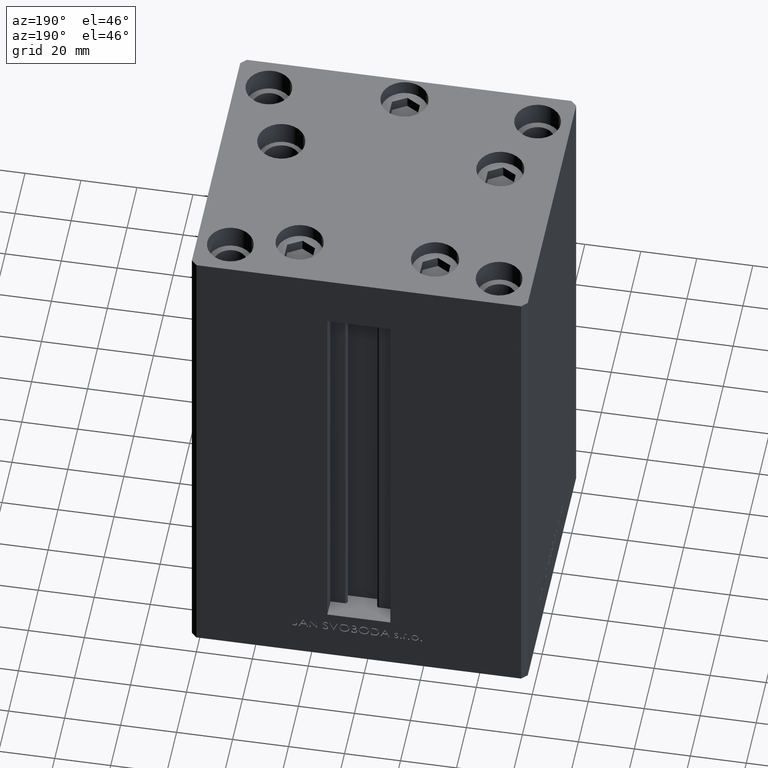
[diagram: clean part render]
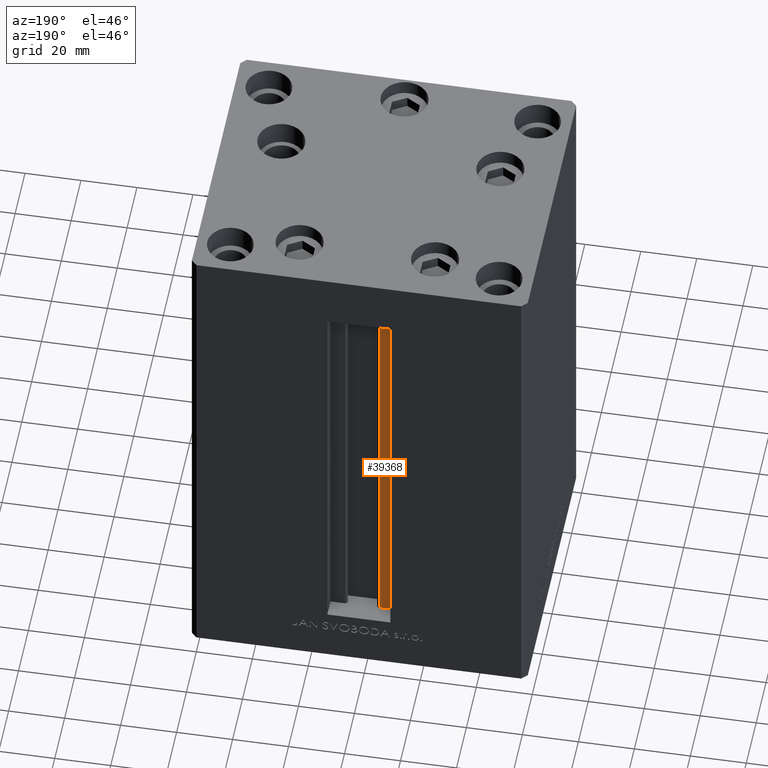
[diagram: same view with one face highlighted and labeled with its STEP entity id]
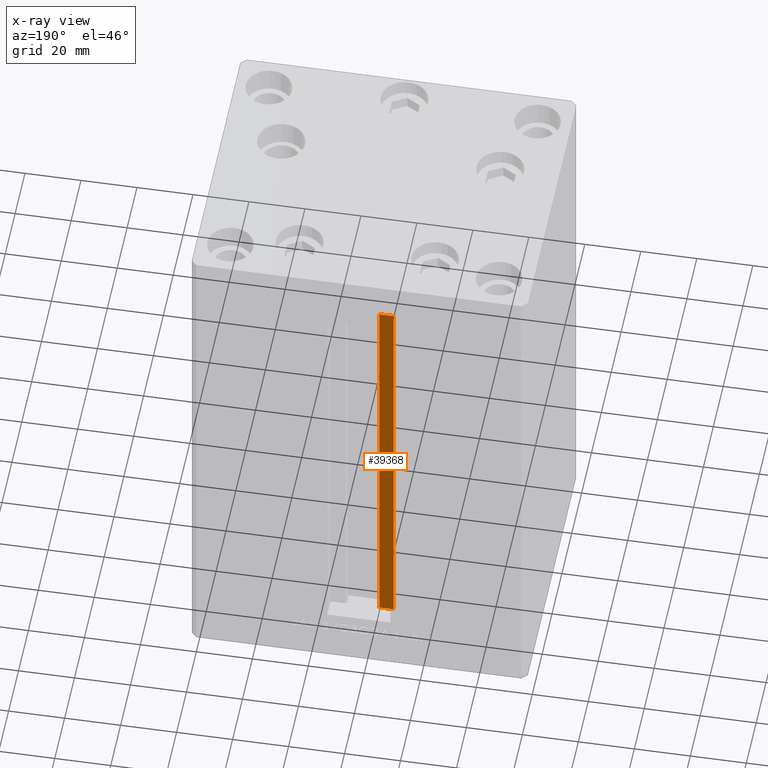
[diagram: x-ray of the same camera — body ghosted, the highlighted face saturated]
A machine part, auxiliary view. The second image highlights one B-rep face of the part: STEP entity #39368.
The next image is the same camera in x-ray: the body ghosted, the highlighted face saturated — about 0% of this face is hidden behind the body in this view.
In plain terms, the highlighted planar face has unit normal (0, -1, 0).
Its self-contained STEP definition (entity closure, byte-faithful):
#770 = VERTEX_POINT ( 'NONE', #5884 ) ;
#855 = VECTOR ( 'NONE', #26002, 1000.000000000000000 ) ;
#2185 = EDGE_CURVE ( 'NONE', #13941, #12533, #5060, .T. ) ;
#5060 = LINE ( 'NONE', #40102, #8283 ) ;
#5334 = VECTOR ( 'NONE', #23003, 1000.000000000000000 ) ;
#5884 = CARTESIAN_POINT ( 'NONE',  ( -6.183333333334001480, 44.50000000000000000, 148.5000000000000000 ) ) ;
#7271 = CARTESIAN_POINT ( 'NONE',  ( -11.25000000000000178, 44.50000000000000000, 148.5000000000000000 ) ) ;
#8283 = VECTOR ( 'NONE', #17485, 1000.000000000000000 ) ;
#10860 = CARTESIAN_POINT ( 'NONE',  ( -6.183333333334001480, 44.50000000000000000, 0.000000000000000000 ) ) ;
#11337 = CARTESIAN_POINT ( 'NONE',  ( -6.183333333334001480, 44.50000000000000000, 0.000000000000000000 ) ) ;
#12056 = ORIENTED_EDGE ( 'NONE', *, *, #39728, .F. ) ;
#12533 = VERTEX_POINT ( 'NONE', #7271 ) ;
#13941 = VERTEX_POINT ( 'NONE', #16707 ) ;
#14579 = LINE ( 'NONE', #10860, #25008 ) ;
#16707 = CARTESIAN_POINT ( 'NONE',  ( -11.25000000000000178, 44.50000000000000000, 0.000000000000000000 ) ) ;
#17485 = DIRECTION ( 'NONE',  ( -0.000000000000000000, -0.000000000000000000, 1.000000000000000000 ) ) ;
#18610 = CARTESIAN_POINT ( 'NONE',  ( -6.183333333334001480, 44.50000000000000000, 0.000000000000000000 ) ) ;
#20353 = AXIS2_PLACEMENT_3D ( 'NONE', #18610, #44710, #33765 ) ;
#21424 = EDGE_CURVE ( 'NONE', #770, #12533, #48593, .T. ) ;
#22340 = FACE_OUTER_BOUND ( 'NONE', #32033, .T. ) ;
#23003 = DIRECTION ( 'NONE',  ( -0.000000000000000000, -0.000000000000000000, 1.000000000000000000 ) ) ;
#23081 = CARTESIAN_POINT ( 'NONE',  ( -6.183333333334001480, 44.50000000000000000, 0.000000000000000000 ) ) ;
#23734 = LINE ( 'NONE', #11337, #5334 ) ;
#25008 = VECTOR ( 'NONE', #26008, 1000.000000000000000 ) ;
#26002 = DIRECTION ( 'NONE',  ( -1.000000000000000000, 0.000000000000000000, 0.000000000000000000 ) ) ;
#26008 = DIRECTION ( 'NONE',  ( 1.000000000000000000, -0.000000000000000000, -0.000000000000000000 ) ) ;
#29044 = ORIENTED_EDGE ( 'NONE', *, *, #34497, .F. ) ;
#32033 = EDGE_LOOP ( 'NONE', ( #12056, #29044, #34203, #47665 ) ) ;
#33765 = DIRECTION ( 'NONE',  ( 0.000000000000000000, 0.000000000000000000, -1.000000000000000000 ) ) ;
#34203 = ORIENTED_EDGE ( 'NONE', *, *, #2185, .T. ) ;
#34497 = EDGE_CURVE ( 'NONE', #13941, #37282, #14579, .T. ) ;
#37282 = VERTEX_POINT ( 'NONE', #23081 ) ;
#37491 = PLANE ( 'NONE',  #20353 ) ;
#39368 = ADVANCED_FACE ( 'NONE', ( #22340 ), #37491, .F. ) ;
#39728 = EDGE_CURVE ( 'NONE', #37282, #770, #23734, .T. ) ;
#40102 = CARTESIAN_POINT ( 'NONE',  ( -11.25000000000000178, 44.50000000000000000, 0.000000000000000000 ) ) ;
#44710 = DIRECTION ( 'NONE',  ( 0.000000000000000000, -1.000000000000000000, -0.000000000000000000 ) ) ;
#44875 = CARTESIAN_POINT ( 'NONE',  ( 0.000000000000000000, 44.50000000000000000, 148.5000000000000000 ) ) ;
#47665 = ORIENTED_EDGE ( 'NONE', *, *, #21424, .F. ) ;
#48593 = LINE ( 'NONE', #44875, #855 ) ;